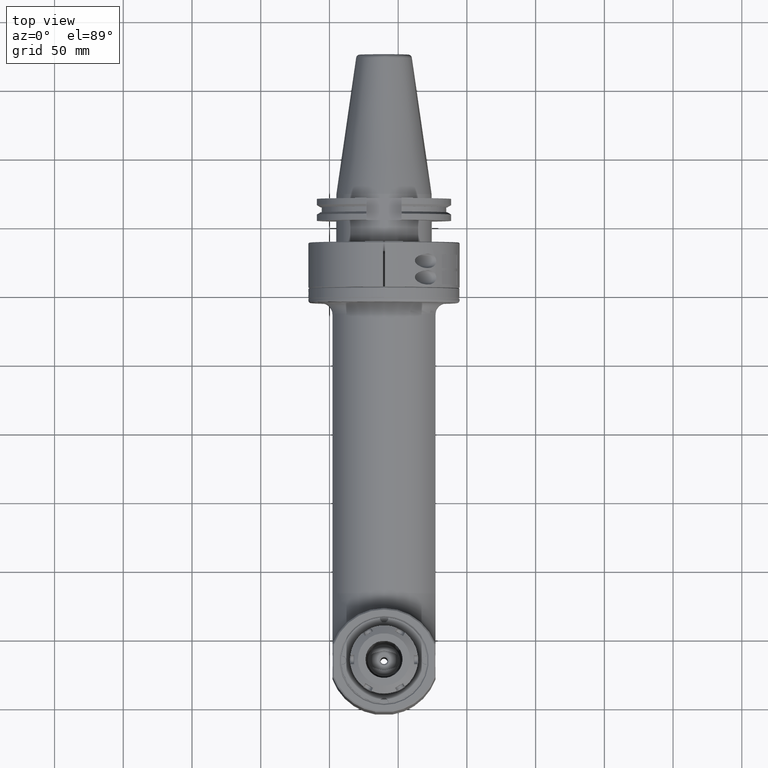
[diagram: clean part render]
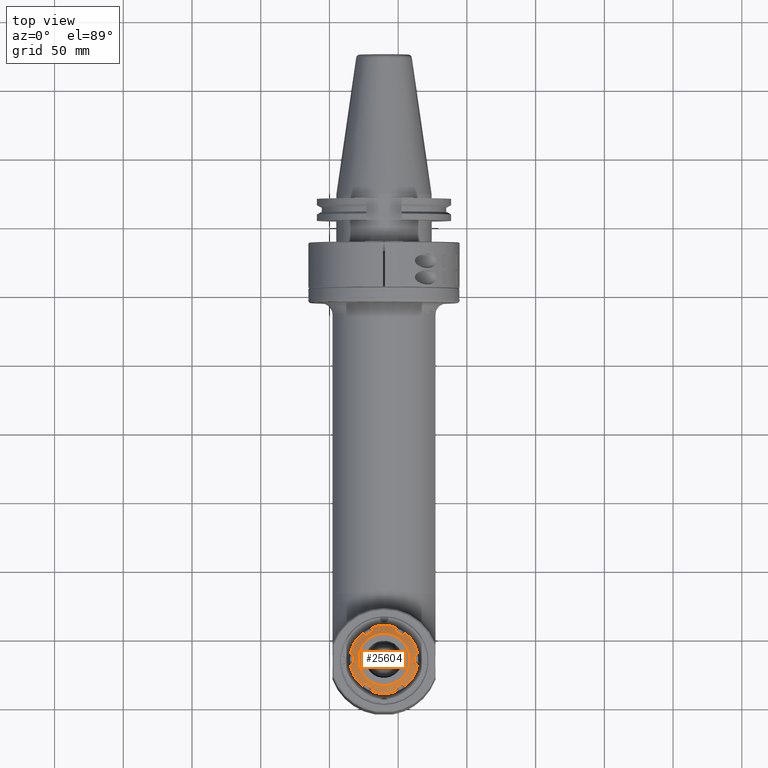
[diagram: same view with one face highlighted and labeled with its STEP entity id]
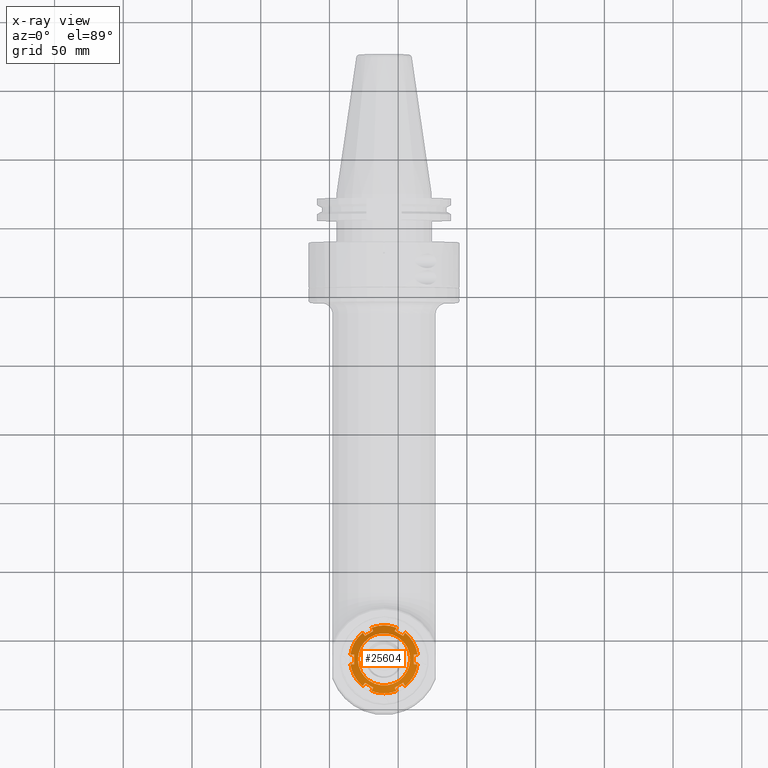
[diagram: x-ray of the same camera — body ghosted, the highlighted face saturated]
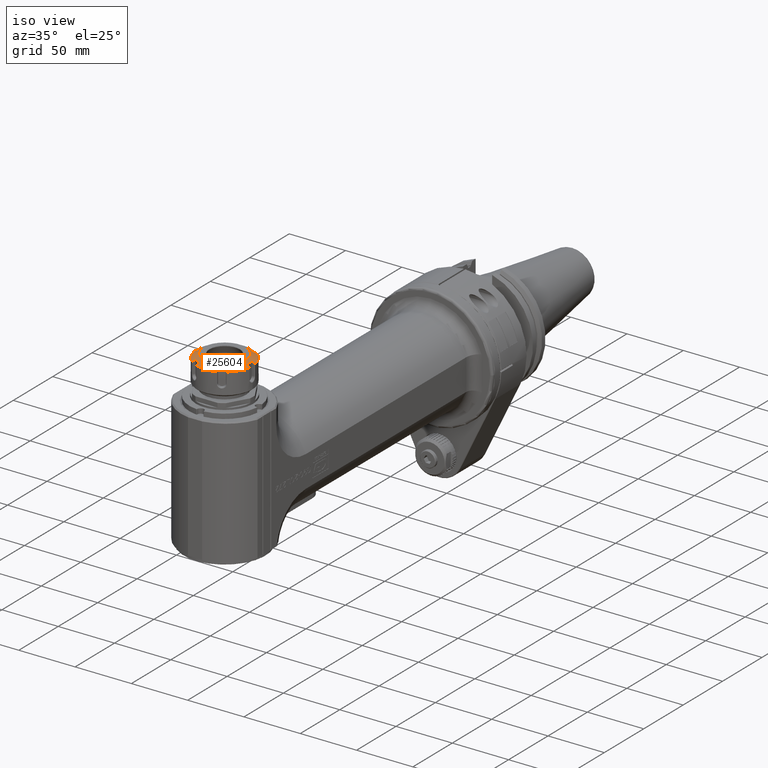
[diagram: same view with one face highlighted and labeled with its STEP entity id]
A machine part, top view. The second image highlights one B-rep face of the part: STEP entity #25604.
The next image is the same camera in x-ray: the body ghosted, the highlighted face saturated — about 0% of this face is hidden behind the body in this view.
A second angle (iso view) of the same face is appended — the face is thin or edge-on in the first view.
In plain terms, the highlighted conical surface has half-angle 60 deg.
Its self-contained STEP definition (entity closure, byte-faithful):
#280=(
BOUNDED_CURVE()
B_SPLINE_CURVE(2,(#43782,#43783,#43784),.UNSPECIFIED.,.F.,.F.)
B_SPLINE_CURVE_WITH_KNOTS((3,3),(-1.82654082025657,-1.82066003770746),
 .UNSPECIFIED.)
CURVE()
GEOMETRIC_REPRESENTATION_ITEM()
RATIONAL_B_SPLINE_CURVE((1.10514898114886,1.10514190550826,1.10513378545451))
REPRESENTATION_ITEM('')
);
#281=(
BOUNDED_CURVE()
B_SPLINE_CURVE(2,(#43809,#43810,#43811),.UNSPECIFIED.,.F.,.F.)
B_SPLINE_CURVE_WITH_KNOTS((3,3),(1.82066009603471,1.82654082049845),
 .UNSPECIFIED.)
CURVE()
GEOMETRIC_REPRESENTATION_ITEM()
RATIONAL_B_SPLINE_CURVE((1.10513378565905,1.10514190562235,1.10514898119313))
REPRESENTATION_ITEM('')
);
#282=(
BOUNDED_CURVE()
B_SPLINE_CURVE(2,(#43813,#43814,#43815),.UNSPECIFIED.,.F.,.F.)
B_SPLINE_CURVE_WITH_KNOTS((3,3),(1.90622250388179,1.91210328642341),
 .UNSPECIFIED.)
CURVE()
GEOMETRIC_REPRESENTATION_ITEM()
RATIONAL_B_SPLINE_CURVE((1.10514898079862,1.10514190515858,1.1051337851054))
REPRESENTATION_ITEM('')
);
#283=(
BOUNDED_CURVE()
B_SPLINE_CURVE(2,(#43839,#43840,#43841),.UNSPECIFIED.,.F.,.F.)
B_SPLINE_CURVE_WITH_KNOTS((3,3),(1.82066003553633,1.82654081593924),
 .UNSPECIFIED.)
CURVE()
GEOMETRIC_REPRESENTATION_ITEM()
RATIONAL_B_SPLINE_CURVE((1.10513378467572,1.10514190472488,1.10514898036164))
REPRESENTATION_ITEM('')
);
#284=(
BOUNDED_CURVE()
B_SPLINE_CURVE(2,(#43843,#43844,#43845),.UNSPECIFIED.,.F.,.F.)
B_SPLINE_CURVE_WITH_KNOTS((3,3),(1.90622249083635,1.91210327336725),
 .UNSPECIFIED.)
CURVE()
GEOMETRIC_REPRESENTATION_ITEM()
RATIONAL_B_SPLINE_CURVE((1.10514898025263,1.10514190461348,1.10513378456117))
REPRESENTATION_ITEM('')
);
#285=(
BOUNDED_CURVE()
B_SPLINE_CURVE(2,(#43871,#43872,#43873),.UNSPECIFIED.,.F.,.F.)
B_SPLINE_CURVE_WITH_KNOTS((3,3),(1.82066003856735,1.82654081898124),
 .UNSPECIFIED.)
CURVE()
GEOMETRIC_REPRESENTATION_ITEM()
RATIONAL_B_SPLINE_CURVE((1.10513378522875,1.10514190527881,1.10514898091646))
REPRESENTATION_ITEM('')
);
#286=(
BOUNDED_CURVE()
B_SPLINE_CURVE(2,(#43902,#43903,#43904),.UNSPECIFIED.,.F.,.F.)
B_SPLINE_CURVE_WITH_KNOTS((3,3),(1.82066004007824,1.82654082049845),
 .UNSPECIFIED.)
CURVE()
GEOMETRIC_REPRESENTATION_ITEM()
RATIONAL_B_SPLINE_CURVE((1.10513378550452,1.10514190555503,1.10514898119313))
REPRESENTATION_ITEM('')
);
#287=(
BOUNDED_CURVE()
B_SPLINE_CURVE(2,(#43906,#43907,#43908),.UNSPECIFIED.,.F.,.F.)
B_SPLINE_CURVE_WITH_KNOTS((3,3),(1.90622250388181,1.91210328642343),
 .UNSPECIFIED.)
CURVE()
GEOMETRIC_REPRESENTATION_ITEM()
RATIONAL_B_SPLINE_CURVE((1.10514898079858,1.10514190515855,1.10513378510537))
REPRESENTATION_ITEM('')
);
#288=(
BOUNDED_CURVE()
B_SPLINE_CURVE(2,(#43932,#43933,#43934),.UNSPECIFIED.,.F.,.F.)
B_SPLINE_CURVE_WITH_KNOTS((3,3),(1.82066003553633,1.82654081593924),
 .UNSPECIFIED.)
CURVE()
GEOMETRIC_REPRESENTATION_ITEM()
RATIONAL_B_SPLINE_CURVE((1.10513378467572,1.10514190472488,1.10514898036164))
REPRESENTATION_ITEM('')
);
#289=(
BOUNDED_CURVE()
B_SPLINE_CURVE(2,(#43936,#43937,#43938),.UNSPECIFIED.,.F.,.F.)
B_SPLINE_CURVE_WITH_KNOTS((3,3),(1.90622249083635,1.91210327336725),
 .UNSPECIFIED.)
CURVE()
GEOMETRIC_REPRESENTATION_ITEM()
RATIONAL_B_SPLINE_CURVE((1.10514898025263,1.10514190461348,1.10513378456117))
REPRESENTATION_ITEM('')
);
#290=(
BOUNDED_CURVE()
B_SPLINE_CURVE(2,(#43964,#43965,#43966),.UNSPECIFIED.,.F.,.F.)
B_SPLINE_CURVE_WITH_KNOTS((3,3),(1.82066001949609,1.82654081898166),
 .UNSPECIFIED.)
CURVE()
GEOMETRIC_REPRESENTATION_ITEM()
RATIONAL_B_SPLINE_CURVE((1.10513378517611,1.10514190525589,1.1051489809165))
REPRESENTATION_ITEM('')
);
#291=(
BOUNDED_CURVE()
B_SPLINE_CURVE(2,(#43968,#43969,#43970),.UNSPECIFIED.,.F.,.F.)
B_SPLINE_CURVE_WITH_KNOTS((3,3),(-1.82654082025657,-1.82066003770746),
 .UNSPECIFIED.)
CURVE()
GEOMETRIC_REPRESENTATION_ITEM()
RATIONAL_B_SPLINE_CURVE((1.10514898114886,1.10514190550826,1.10513378545451))
REPRESENTATION_ITEM('')
);
#495=B_SPLINE_CURVE_WITH_KNOTS('',3,(#43796,#43797,#43798,#43799,#43800,
#43801),.UNSPECIFIED.,.F.,.F.,(4,2,4),(1.0003305131029E-6,0.177019940719995,
0.35470453762836),.UNSPECIFIED.);
#496=B_SPLINE_CURVE_WITH_KNOTS('',3,(#43803,#43804,#43805,#43806,#43807,
#43808),.UNSPECIFIED.,.F.,.F.,(4,2,4),(6.577857879015E-6,0.158649509798288,
0.312349185879259),.UNSPECIFIED.);
#497=B_SPLINE_CURVE_WITH_KNOTS('',3,(#43817,#43818,#43819,#43820,#43821,
#43822),.UNSPECIFIED.,.F.,.F.,(4,2,4),(9.99999986178723E-7,0.153548746655682,
0.311883060849762),.UNSPECIFIED.);
#498=B_SPLINE_CURVE_WITH_KNOTS('',3,(#43824,#43825,#43826,#43827,#43828,
#43829,#43830,#43831),.UNSPECIFIED.,.F.,.F.,(4,2,2,4),(3.0441352917193E-6,
0.177048172058341,0.353291981132273,0.710275238731248),.UNSPECIFIED.);
#499=B_SPLINE_CURVE_WITH_KNOTS('',3,(#43833,#43834,#43835,#43836,#43837,
#43838),.UNSPECIFIED.,.F.,.F.,(4,2,4),(1.32932882666564E-6,0.15857035844979,
0.312342936466607),.UNSPECIFIED.);
#500=B_SPLINE_CURVE_WITH_KNOTS('',3,(#43847,#43848,#43849,#43850,#43851,
#43852),.UNSPECIFIED.,.F.,.F.,(4,2,4),(9.99999984802887E-7,0.153549233149355,
0.311884353162375),.UNSPECIFIED.);
#501=B_SPLINE_CURVE_WITH_KNOTS('',3,(#43854,#43855,#43856,#43857,#43858,
#43859,#43860,#43861,#43862,#43863),.UNSPECIFIED.,.F.,.F.,(4,2,2,2,4),(3.43894562492712E-6,
0.179256817110155,0.356213165148075,0.532342427953804,0.709279107698649),
 .UNSPECIFIED.);
#502=B_SPLINE_CURVE_WITH_KNOTS('',3,(#43865,#43866,#43867,#43868,#43869,
#43870),.UNSPECIFIED.,.F.,.F.,(4,2,4),(2.07934155377344E-6,0.158569755414335,
0.312342355607041),.UNSPECIFIED.);
#503=B_SPLINE_CURVE_WITH_KNOTS('',3,(#43875,#43876,#43877,#43878,#43879,
#43880),.UNSPECIFIED.,.F.,.F.,(4,2,4),(9.99999987233435E-7,0.153548805069457,
0.311879056392476),.UNSPECIFIED.);
#504=B_SPLINE_CURVE_WITH_KNOTS('',3,(#43882,#43883,#43884,#43885,#43886,
#43887),.UNSPECIFIED.,.F.,.F.,(4,2,4),(4.05463969621874E-6,0.177668954393779,
0.354666002528222),.UNSPECIFIED.);
#505=B_SPLINE_CURVE_WITH_KNOTS('',3,(#43889,#43890,#43891,#43892,#43893,
#43894),.UNSPECIFIED.,.F.,.F.,(4,2,4),(1.00033051304272E-6,0.177019946605407,
0.35470455978336),.UNSPECIFIED.);
#506=B_SPLINE_CURVE_WITH_KNOTS('',3,(#43896,#43897,#43898,#43899,#43900,
#43901),.UNSPECIFIED.,.F.,.F.,(4,2,4),(6.57690711653156E-6,0.15857018708774,
0.312342847226769),.UNSPECIFIED.);
#507=B_SPLINE_CURVE_WITH_KNOTS('',3,(#43910,#43911,#43912,#43913,#43914,
#43915),.UNSPECIFIED.,.F.,.F.,(4,2,4),(9.99999986178723E-7,0.153548746642122,
0.311883060847069),.UNSPECIFIED.);
#508=B_SPLINE_CURVE_WITH_KNOTS('',3,(#43917,#43918,#43919,#43920,#43921,
#43922,#43923,#43924),.UNSPECIFIED.,.F.,.F.,(4,2,2,4),(3.04413529177817E-6,
0.177048172057927,0.353291981131585,0.710275238730841),.UNSPECIFIED.);
#509=B_SPLINE_CURVE_WITH_KNOTS('',3,(#43926,#43927,#43928,#43929,#43930,
#43931),.UNSPECIFIED.,.F.,.F.,(4,2,4),(1.32932882485258E-6,0.15857035845071,
0.312342936470359),.UNSPECIFIED.);
#510=B_SPLINE_CURVE_WITH_KNOTS('',3,(#43940,#43941,#43942,#43943,#43944,
#43945),.UNSPECIFIED.,.F.,.F.,(4,2,4),(9.99999984614193E-7,0.153549233162973,
0.31188435318168),.UNSPECIFIED.);
#511=B_SPLINE_CURVE_WITH_KNOTS('',3,(#43947,#43948,#43949,#43950,#43951,
#43952,#43953,#43954,#43955,#43956),.UNSPECIFIED.,.F.,.F.,(4,2,2,2,4),(3.4389456252382E-6,
0.179256816906086,0.35621316474422,0.532342426801753,0.709279115258256),
 .UNSPECIFIED.);
#512=B_SPLINE_CURVE_WITH_KNOTS('',3,(#43958,#43959,#43960,#43961,#43962,
#43963),.UNSPECIFIED.,.F.,.F.,(4,2,4),(2.07505435481987E-6,0.158542687494745,
0.312340213893126),.UNSPECIFIED.);
#513=B_SPLINE_CURVE_WITH_KNOTS('',3,(#43972,#43973,#43974,#43975,#43976,
#43977),.UNSPECIFIED.,.F.,.F.,(4,2,4),(9.99999986101761E-7,0.153548805079735,
0.311879056405661),.UNSPECIFIED.);
#514=B_SPLINE_CURVE_WITH_KNOTS('',3,(#43978,#43979,#43980,#43981,#43982,
#43983),.UNSPECIFIED.,.F.,.F.,(4,2,4),(4.05463969531323E-6,0.177668954393778,
0.354666002528218),.UNSPECIFIED.);
#748=CONICAL_SURFACE('',#27569,21.875,1.0471975511966);
#2446=LINE('',#43985,#4859);
#4859=VECTOR('',#32804,21.875);
#6941=FACE_OUTER_BOUND('',#8473,.T.);
#8473=EDGE_LOOP('',(#20827,#20828,#20829,#20830,#20831,#20832,#20833,#20834,
#20835,#20836,#20837,#20838,#20839,#20840,#20841,#20842,#20843,#20844,#20845,
#20846,#20847,#20848,#20849,#20850,#20851,#20852,#20853,#20854,#20855,#20856,
#20857,#20858,#20859,#20860,#20861,#20862,#20863,#20864,#20865,#20866,#20867));
#9560=CIRCLE('',#27562,24.75);
#9561=CIRCLE('',#27563,24.75);
#9562=CIRCLE('',#27564,24.75);
#9563=CIRCLE('',#27565,24.75);
#9564=CIRCLE('',#27566,24.75);
#9565=CIRCLE('',#27567,24.75);
#9566=CIRCLE('',#27570,19.);
#11507=VERTEX_POINT('',#43463);
#11508=VERTEX_POINT('',#43465);
#11511=VERTEX_POINT('',#43500);
#11512=VERTEX_POINT('',#43502);
#11515=VERTEX_POINT('',#43531);
#11516=VERTEX_POINT('',#43533);
#11520=VERTEX_POINT('',#43568);
#11521=VERTEX_POINT('',#43570);
#11524=VERTEX_POINT('',#43605);
#11525=VERTEX_POINT('',#43607);
#11528=VERTEX_POINT('',#43636);
#11529=VERTEX_POINT('',#43638);
#11534=VERTEX_POINT('',#43781);
#11536=VERTEX_POINT('',#43794);
#11537=VERTEX_POINT('',#43795);
#11538=VERTEX_POINT('',#43802);
#11539=VERTEX_POINT('',#43812);
#11540=VERTEX_POINT('',#43816);
#11541=VERTEX_POINT('',#43823);
#11542=VERTEX_POINT('',#43832);
#11543=VERTEX_POINT('',#43842);
#11544=VERTEX_POINT('',#43846);
#11545=VERTEX_POINT('',#43853);
#11546=VERTEX_POINT('',#43864);
#11547=VERTEX_POINT('',#43874);
#11548=VERTEX_POINT('',#43881);
#11549=VERTEX_POINT('',#43888);
#11550=VERTEX_POINT('',#43895);
#11551=VERTEX_POINT('',#43905);
#11552=VERTEX_POINT('',#43909);
#11553=VERTEX_POINT('',#43916);
#11554=VERTEX_POINT('',#43925);
#11555=VERTEX_POINT('',#43935);
#11556=VERTEX_POINT('',#43939);
#11557=VERTEX_POINT('',#43946);
#11558=VERTEX_POINT('',#43957);
#11559=VERTEX_POINT('',#43967);
#11560=VERTEX_POINT('',#43971);
#11561=VERTEX_POINT('',#43984);
#14775=EDGE_CURVE('',#11507,#11508,#9560,.T.);
#14779=EDGE_CURVE('',#11511,#11512,#9561,.T.);
#14783=EDGE_CURVE('',#11515,#11516,#9562,.T.);
#14789=EDGE_CURVE('',#11521,#11520,#9563,.T.);
#14793=EDGE_CURVE('',#11525,#11524,#9564,.T.);
#14797=EDGE_CURVE('',#11529,#11528,#9565,.T.);
#14805=EDGE_CURVE('',#11520,#11534,#280,.T.);
#14808=EDGE_CURVE('',#11536,#11537,#495,.T.);
#14809=EDGE_CURVE('',#11537,#11538,#496,.T.);
#14810=EDGE_CURVE('',#11538,#11529,#281,.T.);
#14811=EDGE_CURVE('',#11528,#11539,#282,.T.);
#14812=EDGE_CURVE('',#11539,#11540,#497,.T.);
#14813=EDGE_CURVE('',#11540,#11541,#498,.T.);
#14814=EDGE_CURVE('',#11541,#11542,#499,.T.);
#14815=EDGE_CURVE('',#11542,#11525,#283,.T.);
#14816=EDGE_CURVE('',#11524,#11543,#284,.T.);
#14817=EDGE_CURVE('',#11543,#11544,#500,.T.);
#14818=EDGE_CURVE('',#11544,#11545,#501,.T.);
#14819=EDGE_CURVE('',#11545,#11546,#502,.T.);
#14820=EDGE_CURVE('',#11546,#11521,#285,.T.);
#14821=EDGE_CURVE('',#11534,#11547,#503,.T.);
#14822=EDGE_CURVE('',#11547,#11548,#504,.T.);
#14823=EDGE_CURVE('',#11548,#11549,#505,.T.);
#14824=EDGE_CURVE('',#11549,#11550,#506,.T.);
#14825=EDGE_CURVE('',#11550,#11516,#286,.T.);
#14826=EDGE_CURVE('',#11515,#11551,#287,.T.);
#14827=EDGE_CURVE('',#11551,#11552,#507,.T.);
#14828=EDGE_CURVE('',#11552,#11553,#508,.T.);
#14829=EDGE_CURVE('',#11553,#11554,#509,.T.);
#14830=EDGE_CURVE('',#11554,#11512,#288,.T.);
#14831=EDGE_CURVE('',#11511,#11555,#289,.T.);
#14832=EDGE_CURVE('',#11555,#11556,#510,.T.);
#14833=EDGE_CURVE('',#11556,#11557,#511,.T.);
#14834=EDGE_CURVE('',#11557,#11558,#512,.T.);
#14835=EDGE_CURVE('',#11558,#11508,#290,.T.);
#14836=EDGE_CURVE('',#11507,#11559,#291,.T.);
#14837=EDGE_CURVE('',#11559,#11560,#513,.T.);
#14838=EDGE_CURVE('',#11560,#11536,#514,.T.);
#14839=EDGE_CURVE('',#11536,#11561,#2446,.T.);
#14840=EDGE_CURVE('',#11561,#11561,#9566,.T.);
#20827=ORIENTED_EDGE('',*,*,#14808,.T.);
#20828=ORIENTED_EDGE('',*,*,#14809,.T.);
#20829=ORIENTED_EDGE('',*,*,#14810,.T.);
#20830=ORIENTED_EDGE('',*,*,#14797,.T.);
#20831=ORIENTED_EDGE('',*,*,#14811,.T.);
#20832=ORIENTED_EDGE('',*,*,#14812,.T.);
#20833=ORIENTED_EDGE('',*,*,#14813,.T.);
#20834=ORIENTED_EDGE('',*,*,#14814,.T.);
#20835=ORIENTED_EDGE('',*,*,#14815,.T.);
#20836=ORIENTED_EDGE('',*,*,#14793,.T.);
#20837=ORIENTED_EDGE('',*,*,#14816,.T.);
#20838=ORIENTED_EDGE('',*,*,#14817,.T.);
#20839=ORIENTED_EDGE('',*,*,#14818,.T.);
#20840=ORIENTED_EDGE('',*,*,#14819,.T.);
#20841=ORIENTED_EDGE('',*,*,#14820,.T.);
#20842=ORIENTED_EDGE('',*,*,#14789,.T.);
#20843=ORIENTED_EDGE('',*,*,#14805,.T.);
#20844=ORIENTED_EDGE('',*,*,#14821,.T.);
#20845=ORIENTED_EDGE('',*,*,#14822,.T.);
#20846=ORIENTED_EDGE('',*,*,#14823,.T.);
#20847=ORIENTED_EDGE('',*,*,#14824,.T.);
#20848=ORIENTED_EDGE('',*,*,#14825,.T.);
#20849=ORIENTED_EDGE('',*,*,#14783,.F.);
#20850=ORIENTED_EDGE('',*,*,#14826,.T.);
#20851=ORIENTED_EDGE('',*,*,#14827,.T.);
#20852=ORIENTED_EDGE('',*,*,#14828,.T.);
#20853=ORIENTED_EDGE('',*,*,#14829,.T.);
#20854=ORIENTED_EDGE('',*,*,#14830,.T.);
#20855=ORIENTED_EDGE('',*,*,#14779,.F.);
#20856=ORIENTED_EDGE('',*,*,#14831,.T.);
#20857=ORIENTED_EDGE('',*,*,#14832,.T.);
#20858=ORIENTED_EDGE('',*,*,#14833,.T.);
#20859=ORIENTED_EDGE('',*,*,#14834,.T.);
#20860=ORIENTED_EDGE('',*,*,#14835,.T.);
#20861=ORIENTED_EDGE('',*,*,#14775,.F.);
#20862=ORIENTED_EDGE('',*,*,#14836,.T.);
#20863=ORIENTED_EDGE('',*,*,#14837,.T.);
#20864=ORIENTED_EDGE('',*,*,#14838,.T.);
#20865=ORIENTED_EDGE('',*,*,#14839,.T.);
#20866=ORIENTED_EDGE('',*,*,#14840,.F.);
#20867=ORIENTED_EDGE('',*,*,#14839,.F.);
#25604=ADVANCED_FACE('',(#6941),#748,.T.);
#27562=AXIS2_PLACEMENT_3D('',#43466,#32772,#32773);
#27563=AXIS2_PLACEMENT_3D('',#43503,#32776,#32777);
#27564=AXIS2_PLACEMENT_3D('',#43534,#32780,#32781);
#27565=AXIS2_PLACEMENT_3D('',#43571,#32785,#32786);
#27566=AXIS2_PLACEMENT_3D('',#43608,#32789,#32790);
#27567=AXIS2_PLACEMENT_3D('',#43639,#32793,#32794);
#27569=AXIS2_PLACEMENT_3D('',#43793,#32802,#32803);
#27570=AXIS2_PLACEMENT_3D('',#43986,#32805,#32806);
#32772=DIRECTION('center_axis',(0.,0.,-1.));
#32773=DIRECTION('ref_axis',(-0.989529626064201,0.1443298969072,0.));
#32776=DIRECTION('center_axis',(0.,0.,-1.));
#32777=DIRECTION('ref_axis',(-0.369771455784902,0.929122742422504,0.));
#32780=DIRECTION('center_axis',(0.,0.,-1.));
#32781=DIRECTION('ref_axis',(0.619758170279316,0.784792845515321,0.));
#32785=DIRECTION('center_axis',(0.,0.,1.));
#32786=DIRECTION('ref_axis',(0.619758170279316,-0.784792845515321,0.));
#32789=DIRECTION('center_axis',(0.,0.,1.));
#32790=DIRECTION('ref_axis',(-0.369771455784902,-0.929122742422504,0.));
#32793=DIRECTION('center_axis',(0.,0.,1.));
#32794=DIRECTION('ref_axis',(-0.989529626064201,-0.1443298969072,0.));
#32802=DIRECTION('center_axis',(0.,0.,-1.));
#32803=DIRECTION('ref_axis',(1.,0.,0.));
#32804=DIRECTION('',(0.866025403784439,-1.06057523872491E-16,0.5));
#32805=DIRECTION('center_axis',(0.,0.,1.));
#32806=DIRECTION('ref_axis',(-1.,0.,0.));
#43463=CARTESIAN_POINT('',(-24.49085824509,3.572164948454,100.1802359522));
#43465=CARTESIAN_POINT('',(-15.33901471441,19.4236229265,100.1802359522));
#43466=CARTESIAN_POINT('Origin',(0.,0.,100.1802359522));
#43500=CARTESIAN_POINT('',(-9.151843530675,22.99578787496,100.1802359522));
#43502=CARTESIAN_POINT('',(9.151843530675,22.99578787496,100.1802359522));
#43503=CARTESIAN_POINT('Origin',(0.,0.,100.1802359522));
#43531=CARTESIAN_POINT('',(15.33901471441,19.4236229265,100.1802359522));
#43533=CARTESIAN_POINT('',(24.49085824509,3.572164948454,100.1802359522));
#43534=CARTESIAN_POINT('Origin',(0.,0.,100.1802359522));
#43568=CARTESIAN_POINT('',(24.49085824509,-3.572164948454,100.1802359522));
#43570=CARTESIAN_POINT('',(15.33901471441,-19.4236229265,100.1802359522));
#43571=CARTESIAN_POINT('Origin',(0.,0.,100.1802359522));
#43605=CARTESIAN_POINT('',(9.151843530675,-22.99578787496,100.1802359522));
#43607=CARTESIAN_POINT('',(-9.151843530675,-22.99578787496,100.1802359522));
#43608=CARTESIAN_POINT('Origin',(0.,0.,100.1802359522));
#43636=CARTESIAN_POINT('',(-15.33901471441,-19.4236229265,100.1802359522));
#43638=CARTESIAN_POINT('',(-24.49085824509,-3.572164948454,100.1802359522));
#43639=CARTESIAN_POINT('Origin',(0.,0.,100.1802359522));
#43781=CARTESIAN_POINT('',(24.4594052314,-3.535791480735,100.2012246278));
#43782=CARTESIAN_POINT('Ctrl Pts',(24.4908582450863,-3.57216494844677,100.180235952182));
#43783=CARTESIAN_POINT('Ctrl Pts',(24.4751201800058,-3.55396484820051,100.190743784958));
#43784=CARTESIAN_POINT('Ctrl Pts',(24.4594052314104,-3.53579148074138,100.201224627827));
#43793=CARTESIAN_POINT('Origin',(0.,0.,101.8401179761));
#43794=CARTESIAN_POINT('',(-21.7499808090265,2.83626591746945E-10,101.91229348921));
#43795=CARTESIAN_POINT('',(-21.7467883487222,-3.54015205255554,101.748865306801));
#43796=CARTESIAN_POINT('Ctrl Pts',(-21.7499691532631,1.22659771228939E-9,
101.912304569121));
#43797=CARTESIAN_POINT('Ctrl Pts',(-21.7498843188799,-0.590063114242779,
101.912353548294));
#43798=CARTESIAN_POINT('Ctrl Pts',(-21.749638145309,-1.17915132632601,101.898630296403));
#43799=CARTESIAN_POINT('Ctrl Pts',(-21.7486241347847,-2.36017416604206,
101.843949712118));
#43800=CARTESIAN_POINT('Ctrl Pts',(-21.7478499128929,-2.95041706490183,
101.802967447972));
#43801=CARTESIAN_POINT('Ctrl Pts',(-21.7467883497813,-3.54015205246087,
101.748865305748));
#43802=CARTESIAN_POINT('',(-24.45940554186,-3.535791839759,100.2012244208));
#43803=CARTESIAN_POINT('Ctrl Pts',(-21.7467883485542,-3.5401520518027,101.748865306509));
#43804=CARTESIAN_POINT('Ctrl Pts',(-22.2062689704796,-3.53931428134317,
101.487108446252));
#43805=CARTESIAN_POINT('Ctrl Pts',(-22.6658663318122,-3.53853969924879,
101.225060792214));
#43806=CARTESIAN_POINT('Ctrl Pts',(-23.5700165861923,-3.5371059225607,100.709178151608));
#43807=CARTESIAN_POINT('Ctrl Pts',(-24.0152297203214,-3.53644285675392,
100.454977500411));
#43808=CARTESIAN_POINT('Ctrl Pts',(-24.4594055418501,-3.53579183975803,
100.201224420783));
#43809=CARTESIAN_POINT('Ctrl Pts',(-24.4594055418526,-3.53579183975471,
100.201224420781));
#43810=CARTESIAN_POINT('Ctrl Pts',(-24.4751203354538,-3.55396502797256,
100.19074368117));
#43811=CARTESIAN_POINT('Ctrl Pts',(-24.4908582450836,-3.57216494844979,
100.180235952183));
#43812=CARTESIAN_POINT('',(-15.2917878605,-19.41457055148,100.2012246278));
#43813=CARTESIAN_POINT('Ctrl Pts',(-15.339014714404,-19.4236229264983,100.180235952186));
#43814=CARTESIAN_POINT('Ctrl Pts',(-15.3153839327006,-19.4190934124556,
100.190743784962));
#43815=CARTESIAN_POINT('Ctrl Pts',(-15.2917878605124,-19.4145705514826,
100.201224627829));
#43816=CARTESIAN_POINT('',(-13.939238649645,-17.0631647559945,101.748885148545));
#43817=CARTESIAN_POINT('Ctrl Pts',(-15.2917878605469,-19.4145705514684,
100.201224627823));
#43818=CARTESIAN_POINT('Ctrl Pts',(-15.0701440268846,-19.0293698791091,
100.455114643384));
#43819=CARTESIAN_POINT('Ctrl Pts',(-14.8480000864256,-18.643277943983,100.709443235117));
#43820=CARTESIAN_POINT('Ctrl Pts',(-14.3971707169074,-17.8595499961817,
101.225321336963));
#43821=CARTESIAN_POINT('Ctrl Pts',(-14.1681432360404,-17.4613138488722,
101.487254254883));
#43822=CARTESIAN_POINT('Ctrl Pts',(-13.9392386489633,-17.0631647562084,
101.748885148275));
#43823=CARTESIAN_POINT('',(-7.80750911433711,-20.60330717875,101.748891703203));
#43824=CARTESIAN_POINT('Ctrl Pts',(-13.9392386500594,-17.0631647568878,
101.74888514757));
#43825=CARTESIAN_POINT('Ctrl Pts',(-13.4308215615089,-17.357924003636,101.802797542955));
#43826=CARTESIAN_POINT('Ctrl Pts',(-12.9218821098981,-17.6526922329338,
101.84365962692));
#43827=CARTESIAN_POINT('Ctrl Pts',(-11.9036491906778,-18.2418286923523,
101.898272235135));
#43828=CARTESIAN_POINT('Ctrl Pts',(-11.3964365889094,-18.5350319406797,
101.912034252427));
#43829=CARTESIAN_POINT('Ctrl Pts',(-9.85823238623759,-19.4231530288114,
101.91272308011));
#43830=CARTESIAN_POINT('Ctrl Pts',(-8.83554254091388,-20.0121876862546,
101.857706874624));
#43831=CARTESIAN_POINT('Ctrl Pts',(-7.80750911371528,-20.6033071778656,
101.748891704274));
#43832=CARTESIAN_POINT('',(-9.167617365192,-22.95036204866,100.2012246202));
#43833=CARTESIAN_POINT('Ctrl Pts',(-7.80750911375977,-20.6033071792806,
101.748891703501));
#43834=CARTESIAN_POINT('Ctrl Pts',(-8.03786753008635,-21.0006250364773,
101.487256795494));
#43835=CARTESIAN_POINT('Ctrl Pts',(-8.26823968420423,-21.3980925451844,
101.225320063336));
#43836=CARTESIAN_POINT('Ctrl Pts',(-8.72155510404177,-22.1803894487542,
100.709439837359));
#43837=CARTESIAN_POINT('Ctrl Pts',(-8.94484831849511,-22.5658172842002,
100.4551115247));
#43838=CARTESIAN_POINT('Ctrl Pts',(-9.16761736521725,-22.9503620486659,
100.201224620231));
#43839=CARTESIAN_POINT('Ctrl Pts',(-9.16761736518551,-22.9503620486734,
100.201224620234));
#43840=CARTESIAN_POINT('Ctrl Pts',(-9.15973624444195,-22.9730582688966,
100.190743781152));
#43841=CARTESIAN_POINT('Ctrl Pts',(-9.15184353067649,-22.9957878749523,
100.180235952182));
#43842=CARTESIAN_POINT('',(9.1676173709,-22.95036203222,100.2012246278));
#43843=CARTESIAN_POINT('Ctrl Pts',(9.15184353067607,-22.9957878749522,100.180235952182));
#43844=CARTESIAN_POINT('Ctrl Pts',(9.15973624730053,-22.9730582606631,100.190743784959));
#43845=CARTESIAN_POINT('Ctrl Pts',(9.1676173708947,-22.9503620322307,100.201224627827));
#43846=CARTESIAN_POINT('',(7.8075091819741,-20.6033074259085,101.748891555946));
#43847=CARTESIAN_POINT('Ctrl Pts',(9.16761737086352,-22.9503620322549,100.201224627821));
#43848=CARTESIAN_POINT('Ctrl Pts',(8.94484430603914,-22.5658100649602,100.455116254713));
#43849=CARTESIAN_POINT('Ctrl Pts',(8.72155378121924,-22.1803868569505,100.709441510814));
#43850=CARTESIAN_POINT('Ctrl Pts',(8.26823682189254,-21.3980874467478,101.225323404236));
#43851=CARTESIAN_POINT('Ctrl Pts',(8.03786602830844,-21.0006224554362,101.487258496255));
#43852=CARTESIAN_POINT('Ctrl Pts',(7.8075091814191,-20.6033074264186,101.748891556232));
#43853=CARTESIAN_POINT('',(13.939238627296,-17.0631648483643,101.748885115415));
#43854=CARTESIAN_POINT('Ctrl Pts',(7.80750918137633,-20.6033074250584,101.748891556975));
#43855=CARTESIAN_POINT('Ctrl Pts',(8.32332850832845,-20.3067115580372,101.803489739144));
#43856=CARTESIAN_POINT('Ctrl Pts',(8.83897954773699,-20.0099274688418,101.844670619709));
#43857=CARTESIAN_POINT('Ctrl Pts',(9.86680529847977,-19.4178312912534,101.899041519012));
#43858=CARTESIAN_POINT('Ctrl Pts',(10.37711239381,-19.123564139905,101.912489025679));
#43859=CARTESIAN_POINT('Ctrl Pts',(11.3963400700334,-18.535087520451,101.912036252129));
#43860=CARTESIAN_POINT('Ctrl Pts',(11.9035616973436,-18.2418792976661,101.898275512925));
#43861=CARTESIAN_POINT('Ctrl Pts',(12.9218291333338,-17.6527230662857,101.84366381133));
#43862=CARTESIAN_POINT('Ctrl Pts',(13.4307949390975,-17.3579396128483,101.802800286752));
#43863=CARTESIAN_POINT('Ctrl Pts',(13.9392386277168,-17.0631648492713,101.748885114425));
#43864=CARTESIAN_POINT('',(15.29178787759,-19.41457055476,100.2012246202));
#43865=CARTESIAN_POINT('Ctrl Pts',(13.9392386266039,-17.0631648485815,101.74888511514));
#43866=CARTESIAN_POINT('Ctrl Pts',(14.1681448240949,-17.461316620276,101.487252435527));
#43867=CARTESIAN_POINT('Ctrl Pts',(14.3971737505318,-17.859555110113,101.225317939531));
#43868=CARTESIAN_POINT('Ctrl Pts',(14.8480031119836,-18.6432828929636,100.709439911148));
#43869=CARTESIAN_POINT('Ctrl Pts',(15.0701468339688,-19.0293744631945,100.455111561426));
#43870=CARTESIAN_POINT('Ctrl Pts',(15.2917878775841,-19.4145705547849,100.201224620233));
#43871=CARTESIAN_POINT('Ctrl Pts',(15.291787877605,-19.4145705547631,100.201224620235));
#43872=CARTESIAN_POINT('Ctrl Pts',(15.3153839412588,-19.4190934141002,100.190743781154));
#43873=CARTESIAN_POINT('Ctrl Pts',(15.3390147144027,-19.4236229265022,100.180235952184));
#43874=CARTESIAN_POINT('',(21.7467883116791,-3.54015233853997,101.748865301379));
#43875=CARTESIAN_POINT('Ctrl Pts',(24.4594052314126,-3.53579148078357,100.201224627822));
#43876=CARTESIAN_POINT('Ctrl Pts',(24.0149895776955,-3.53644262666812,100.455114739969));
#43877=CARTESIAN_POINT('Ctrl Pts',(23.5695520129398,-3.53710629875677,100.709443429003));
#43878=CARTESIAN_POINT('Ctrl Pts',(22.6654206231319,-3.53854056753212,101.225314907726));
#43879=CARTESIAN_POINT('Ctrl Pts',(22.2060360584488,-3.53931500349656,101.487241104514));
#43880=CARTESIAN_POINT('Ctrl Pts',(21.7467883115115,-3.54015233778908,101.748865301088));
#43881=CARTESIAN_POINT('',(21.7499773944747,5.93952832429579E-10,101.912296910753));
#43882=CARTESIAN_POINT('Ctrl Pts',(21.7467883127355,-3.54015233844553,101.748865300329));
#43883=CARTESIAN_POINT('Ctrl Pts',(21.7478496279299,-2.95041347744204,101.802967947548));
#43884=CARTESIAN_POINT('Ctrl Pts',(21.74862352475,-2.36016687148079,101.843950578482));
#43885=CARTESIAN_POINT('Ctrl Pts',(21.7496377384104,-1.17914373419163,101.898630712484));
#43886=CARTESIAN_POINT('Ctrl Pts',(21.7498844467484,-0.590059471380007,
101.912353474484));
#43887=CARTESIAN_POINT('Ctrl Pts',(21.7499705653702,2.16727899515767E-9,
101.91230375384));
#43888=CARTESIAN_POINT('',(21.7467883483266,3.54015227305476,101.748865286571));
#43889=CARTESIAN_POINT('Ctrl Pts',(21.7499691532631,-1.2265957693991E-9,
101.912304569121));
#43890=CARTESIAN_POINT('Ctrl Pts',(21.7498843188771,0.590063133860818,101.912353548295));
#43891=CARTESIAN_POINT('Ctrl Pts',(21.7496381452924,1.17915136546801,101.89863029549));
#43892=CARTESIAN_POINT('Ctrl Pts',(21.7486241346708,2.3601742788598,101.843949705992));
#43893=CARTESIAN_POINT('Ctrl Pts',(21.7478499126621,2.95041723158152,101.802967435963));
#43894=CARTESIAN_POINT('Ctrl Pts',(21.7467883493843,3.5401522729602,101.74886528552));
#43895=CARTESIAN_POINT('',(24.45940524278,3.535791493896,100.2012246202));
#43896=CARTESIAN_POINT('Ctrl Pts',(21.7467883481588,3.54015227230288,101.748865286279));
#43897=CARTESIAN_POINT('Ctrl Pts',(22.206039227958,3.53931499313595,101.487239299196));
#43898=CARTESIAN_POINT('Ctrl Pts',(22.6654265517864,3.53854063778743,101.225311519964));
#43899=CARTESIAN_POINT('Ctrl Pts',(23.5695578053,3.53710644448035,100.709440108666));
#43900=CARTESIAN_POINT('Ctrl Pts',(24.0149949478627,3.53644276563114,100.455111659902));
#43901=CARTESIAN_POINT('Ctrl Pts',(24.4594052427992,3.53579149388104,100.201224620234));
#43902=CARTESIAN_POINT('Ctrl Pts',(24.4594052427905,3.53579149390787,100.201224620236));
#43903=CARTESIAN_POINT('Ctrl Pts',(24.4751201857029,3.55396485479494,100.190743781154));
#43904=CARTESIAN_POINT('Ctrl Pts',(24.4908582450836,3.57216494844979,100.180235952183));
#43905=CARTESIAN_POINT('',(15.2917878605,19.41457055148,100.2012246278));
#43906=CARTESIAN_POINT('Ctrl Pts',(15.339014714404,19.4236229264983,100.180235952186));
#43907=CARTESIAN_POINT('Ctrl Pts',(15.3153839327006,19.4190934124556,100.190743784962));
#43908=CARTESIAN_POINT('Ctrl Pts',(15.2917878605124,19.4145705514826,100.201224627829));
#43909=CARTESIAN_POINT('',(13.939238649645,17.0631647559945,101.748885148545));
#43910=CARTESIAN_POINT('Ctrl Pts',(15.2917878605469,19.4145705514683,100.201224627823));
#43911=CARTESIAN_POINT('Ctrl Pts',(15.0701440269041,19.0293698791431,100.455114643361));
#43912=CARTESIAN_POINT('Ctrl Pts',(14.8480000864331,18.6432779439959,100.709443235109));
#43913=CARTESIAN_POINT('Ctrl Pts',(14.3971707168639,17.859549996106,101.225321337013));
#43914=CARTESIAN_POINT('Ctrl Pts',(14.1681432360215,17.4613138488393,101.487254254905));
#43915=CARTESIAN_POINT('Ctrl Pts',(13.9392386489633,17.0631647562084,101.748885148275));
#43916=CARTESIAN_POINT('',(7.8075091143371,20.60330717875,101.748891703203));
#43917=CARTESIAN_POINT('Ctrl Pts',(13.9392386500594,17.0631647568878,101.74888514757));
#43918=CARTESIAN_POINT('Ctrl Pts',(13.4308215615101,17.3579240036353,101.802797542955));
#43919=CARTESIAN_POINT('Ctrl Pts',(12.9218821098992,17.6526922329331,101.84365962692));
#43920=CARTESIAN_POINT('Ctrl Pts',(11.9036491906784,18.2418286923519,101.898272235135));
#43921=CARTESIAN_POINT('Ctrl Pts',(11.3964365889108,18.5350319406789,101.912034252427));
#43922=CARTESIAN_POINT('Ctrl Pts',(9.85823238623885,19.4231530288106,101.91272308011));
#43923=CARTESIAN_POINT('Ctrl Pts',(8.83554254091426,20.0121876862544,101.857706874624));
#43924=CARTESIAN_POINT('Ctrl Pts',(7.80750911371527,20.6033071778656,101.748891704274));
#43925=CARTESIAN_POINT('',(9.167617365192,22.95036204866,100.2012246202));
#43926=CARTESIAN_POINT('Ctrl Pts',(7.80750911375976,20.6033071792806,101.748891703501));
#43927=CARTESIAN_POINT('Ctrl Pts',(8.03786753008768,21.0006250364796,101.487256795492));
#43928=CARTESIAN_POINT('Ctrl Pts',(8.26823968420751,21.39809254519,101.225320063332));
#43929=CARTESIAN_POINT('Ctrl Pts',(8.72155510404131,22.1803894487534,100.709439837359));
#43930=CARTESIAN_POINT('Ctrl Pts',(8.94484831849378,22.5658172841979,100.455111524702));
#43931=CARTESIAN_POINT('Ctrl Pts',(9.16761736521725,22.9503620486659,100.201224620231));
#43932=CARTESIAN_POINT('Ctrl Pts',(9.16761736518551,22.9503620486734,100.201224620234));
#43933=CARTESIAN_POINT('Ctrl Pts',(9.15973624444195,22.9730582688966,100.190743781152));
#43934=CARTESIAN_POINT('Ctrl Pts',(9.15184353067649,22.9957878749523,100.180235952182));
#43935=CARTESIAN_POINT('',(-9.1676173709,22.95036203222,100.2012246278));
#43936=CARTESIAN_POINT('Ctrl Pts',(-9.15184353067607,22.9957878749522,100.180235952182));
#43937=CARTESIAN_POINT('Ctrl Pts',(-9.15973624730053,22.9730582606631,100.190743784959));
#43938=CARTESIAN_POINT('Ctrl Pts',(-9.1676173708947,22.9503620322307,100.201224627827));
#43939=CARTESIAN_POINT('',(-7.8075091819741,20.6033074259085,101.748891555946));
#43940=CARTESIAN_POINT('Ctrl Pts',(-9.16761737086352,22.9503620322549,100.201224627821));
#43941=CARTESIAN_POINT('Ctrl Pts',(-8.94484430601938,22.5658100649261,100.455116254735));
#43942=CARTESIAN_POINT('Ctrl Pts',(-8.72155378121152,22.1803868569372,100.709441510823));
#43943=CARTESIAN_POINT('Ctrl Pts',(-8.26823682191267,21.3980874467825,101.225323404213));
#43944=CARTESIAN_POINT('Ctrl Pts',(-8.03786602831534,21.0006224554481,101.487258496247));
#43945=CARTESIAN_POINT('Ctrl Pts',(-7.80750918141911,20.6033074264186,101.748891556232));
#43946=CARTESIAN_POINT('',(-13.9392386925136,17.0631648105575,101.748885108496));
#43947=CARTESIAN_POINT('Ctrl Pts',(-7.80750918137633,20.6033074250584,101.748891556975));
#43948=CARTESIAN_POINT('Ctrl Pts',(-8.32332850774119,20.3067115583748,101.803489739082));
#43949=CARTESIAN_POINT('Ctrl Pts',(-8.83897954656633,20.0099274695152,101.844670619616));
#43950=CARTESIAN_POINT('Ctrl Pts',(-9.86680529614579,19.4178312925982,101.89904151892));
#43951=CARTESIAN_POINT('Ctrl Pts',(-10.3771123909002,19.1235641415833,101.912489025618));
#43952=CARTESIAN_POINT('Ctrl Pts',(-11.3963400643906,18.535087523711,101.912036252193));
#43953=CARTESIAN_POINT('Ctrl Pts',(-11.903561689563,18.2418793021648,101.898275513167));
#43954=CARTESIAN_POINT('Ctrl Pts',(-12.9218291485391,17.6527230574922,101.843663810691));
#43955=CARTESIAN_POINT('Ctrl Pts',(-13.430794979311,17.3579395895585,101.802800283609));
#43956=CARTESIAN_POINT('Ctrl Pts',(-13.9392386929331,17.0631648114616,101.748885107509));
#43957=CARTESIAN_POINT('',(-15.29178772455,19.41457052543,100.2012246882));
#43958=CARTESIAN_POINT('Ctrl Pts',(-13.9392386918236,17.0631648107739,101.748885108222));
#43959=CARTESIAN_POINT('Ctrl Pts',(-14.1681058413239,17.4612486149002,101.487297081216));
#43960=CARTESIAN_POINT('Ctrl Pts',(-14.397098986722,17.8594249756298,101.225403504234));
#43961=CARTESIAN_POINT('Ctrl Pts',(-14.8479250155751,18.6431472705315,100.709529270731));
#43962=CARTESIAN_POINT('Ctrl Pts',(-15.0701068138606,19.0293052088823,100.455157269053));
#43963=CARTESIAN_POINT('Ctrl Pts',(-15.2917877245433,19.4145705254427,100.201224688213));
#43964=CARTESIAN_POINT('Ctrl Pts',(-15.2917877245574,19.4145705254271,100.201224688215));
#43965=CARTESIAN_POINT('Ctrl Pts',(-15.3153838646225,19.4190933994107,100.190743815232));
#43966=CARTESIAN_POINT('Ctrl Pts',(-15.3390147144027,19.4236229265022,100.180235952184));
#43967=CARTESIAN_POINT('',(-24.4594052314,3.535791480735,100.2012246278));
#43968=CARTESIAN_POINT('Ctrl Pts',(-24.4908582450863,3.57216494844677,100.180235952182));
#43969=CARTESIAN_POINT('Ctrl Pts',(-24.4751201800058,3.55396484820051,100.190743784958));
#43970=CARTESIAN_POINT('Ctrl Pts',(-24.4594052314104,3.53579148074138,100.201224627827));
#43971=CARTESIAN_POINT('',(-21.7467883116791,3.54015233853998,101.748865301379));
#43972=CARTESIAN_POINT('Ctrl Pts',(-24.4594052314126,3.53579148078357,100.201224627822));
#43973=CARTESIAN_POINT('Ctrl Pts',(-24.0149895776658,3.53644262666816,100.455114739986));
#43974=CARTESIAN_POINT('Ctrl Pts',(-23.569552012929,3.53710629875678,100.709443429009));
#43975=CARTESIAN_POINT('Ctrl Pts',(-22.6654206231653,3.53854056753207,101.225314907707));
#43976=CARTESIAN_POINT('Ctrl Pts',(-22.2060360584622,3.53931500349654,101.487241104507));
#43977=CARTESIAN_POINT('Ctrl Pts',(-21.7467883115116,3.54015233778907,101.748865301088));
#43978=CARTESIAN_POINT('Ctrl Pts',(-21.7467883127355,3.54015233844554,101.748865300329));
#43979=CARTESIAN_POINT('Ctrl Pts',(-21.7478496279299,2.95041347744205,101.802967947548));
#43980=CARTESIAN_POINT('Ctrl Pts',(-21.74862352475,2.36016687148079,101.843950578482));
#43981=CARTESIAN_POINT('Ctrl Pts',(-21.7496377384104,1.17914373419164,101.898630712484));
#43982=CARTESIAN_POINT('Ctrl Pts',(-21.7498844467484,0.590059471380013,
101.912353474484));
#43983=CARTESIAN_POINT('Ctrl Pts',(-21.7499705653702,-2.16727663593375E-9,
101.91230375384));
#43984=CARTESIAN_POINT('',(-19.,0.,103.5));
#43985=CARTESIAN_POINT('',(-21.875,2.67891487313484E-15,101.8401179761));
#43986=CARTESIAN_POINT('Origin',(0.,0.,103.5));